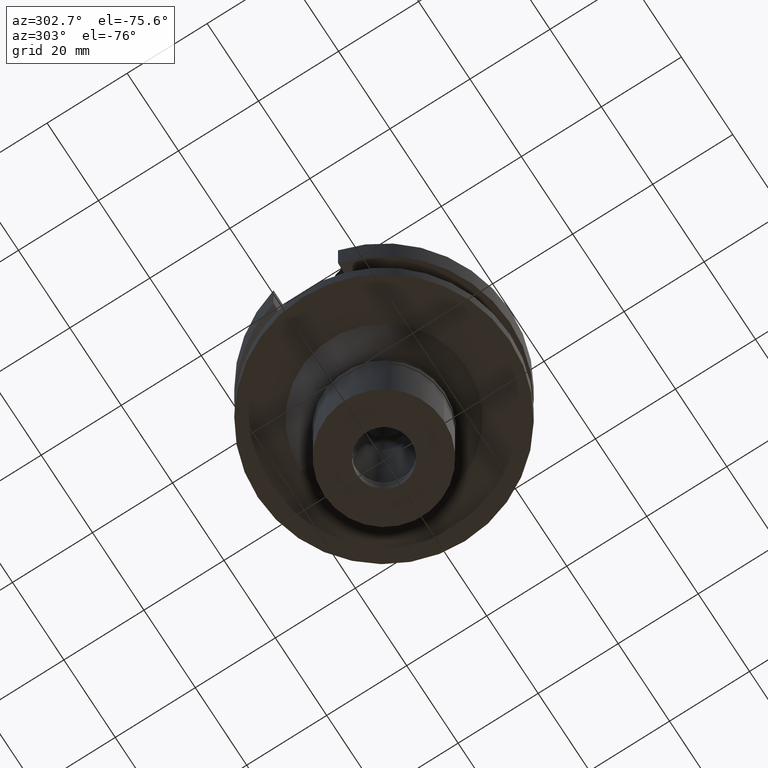
[diagram: clean part render]
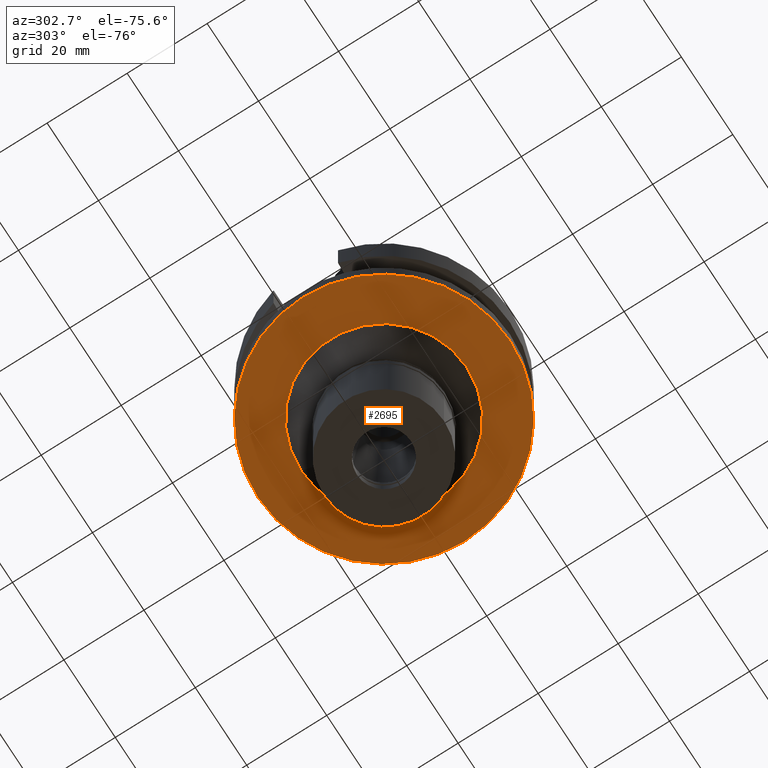
[diagram: same view with one face highlighted and labeled with its STEP entity id]
A machine part, auxiliary view. The second image highlights one B-rep face of the part: STEP entity #2695.
In plain terms, the highlighted planar face has unit normal (0, 0, -1).
Its self-contained STEP definition (entity closure, byte-faithful):
#249 = EDGE_CURVE ( 'NONE', #1019, #1689, #1490, .T. ) ;
#491 = AXIS2_PLACEMENT_3D ( 'NONE', #821, #1798, #2022 ) ;
#532 = CARTESIAN_POINT ( 'NONE',  ( 0.0000000000000000000, -31.50000000000000000, -27.00000000000000000 ) ) ;
#633 = CARTESIAN_POINT ( 'NONE',  ( 0.0000000000000000000, 0.0000000000000000000, -27.00000000000000000 ) ) ;
#645 = DIRECTION ( 'NONE',  ( 0.0000000000000000000, 0.0000000000000000000, -1.000000000000000000 ) ) ;
#670 = CARTESIAN_POINT ( 'NONE',  ( 0.0000000000000000000, 20.75000000000000000, -27.00000000000000000 ) ) ;
#757 = AXIS2_PLACEMENT_3D ( 'NONE', #1042, #2010, #863 ) ;
#788 = CIRCLE ( 'NONE', #1634, 31.50000000000000000 ) ;
#821 = CARTESIAN_POINT ( 'NONE',  ( 0.0000000000000000000, 0.0000000000000000000, -27.00000000000000000 ) ) ;
#824 = DIRECTION ( 'NONE',  ( 0.0000000000000000000, -1.000000000000000000, 0.0000000000000000000 ) ) ;
#863 = DIRECTION ( 'NONE',  ( 0.0000000000000000000, -1.000000000000000000, 0.0000000000000000000 ) ) ;
#1019 = VERTEX_POINT ( 'NONE', #532 ) ;
#1042 = CARTESIAN_POINT ( 'NONE',  ( 0.0000000000000000000, 0.0000000000000000000, -27.00000000000000000 ) ) ;
#1180 = VERTEX_POINT ( 'NONE', #670 ) ;
#1218 = DIRECTION ( 'NONE',  ( 0.0000000000000000000, 1.000000000000000000, 0.0000000000000000000 ) ) ;
#1350 = CARTESIAN_POINT ( 'NONE',  ( 0.0000000000000000000, 0.0000000000000000000, -27.00000000000000000 ) ) ;
#1370 = ORIENTED_EDGE ( 'NONE', *, *, #2499, .F. ) ;
#1465 = EDGE_LOOP ( 'NONE', ( #2450, #2188 ) ) ;
#1468 = VERTEX_POINT ( 'NONE', #2482 ) ;
#1487 = CARTESIAN_POINT ( 'NONE',  ( 0.0000000000000000000, 0.0000000000000000000, -27.00000000000000000 ) ) ;
#1490 = CIRCLE ( 'NONE', #757, 31.50000000000000000 ) ;
#1541 = DIRECTION ( 'NONE',  ( 0.0000000000000000000, 1.000000000000000000, 0.0000000000000000000 ) ) ;
#1580 = EDGE_CURVE ( 'NONE', #1468, #1180, #2846, .T. ) ;
#1634 = AXIS2_PLACEMENT_3D ( 'NONE', #1487, #2192, #1218 ) ;
#1689 = VERTEX_POINT ( 'NONE', #2699 ) ;
#1756 = DIRECTION ( 'NONE',  ( 0.0000000000000000000, 0.0000000000000000000, -1.000000000000000000 ) ) ;
#1798 = DIRECTION ( 'NONE',  ( 0.0000000000000000000, 0.0000000000000000000, -1.000000000000000000 ) ) ;
#1802 = FACE_OUTER_BOUND ( 'NONE', #2128, .T. ) ;
#1878 = CIRCLE ( 'NONE', #2356, 20.75000000000000000 ) ;
#2010 = DIRECTION ( 'NONE',  ( 0.0000000000000000000, 0.0000000000000000000, 1.000000000000000000 ) ) ;
#2022 = DIRECTION ( 'NONE',  ( 0.0000000000000000000, -1.000000000000000000, 0.0000000000000000000 ) ) ;
#2128 = EDGE_LOOP ( 'NONE', ( #1370, #2558 ) ) ;
#2188 = ORIENTED_EDGE ( 'NONE', *, *, #1580, .F. ) ;
#2192 = DIRECTION ( 'NONE',  ( 0.0000000000000000000, 0.0000000000000000000, 1.000000000000000000 ) ) ;
#2216 = EDGE_CURVE ( 'NONE', #1180, #1468, #1878, .T. ) ;
#2356 = AXIS2_PLACEMENT_3D ( 'NONE', #1350, #1756, #1541 ) ;
#2450 = ORIENTED_EDGE ( 'NONE', *, *, #2216, .F. ) ;
#2482 = CARTESIAN_POINT ( 'NONE',  ( 0.0000000000000000000, -20.75000000000000000, -27.00000000000000000 ) ) ;
#2499 = EDGE_CURVE ( 'NONE', #1689, #1019, #788, .T. ) ;
#2558 = ORIENTED_EDGE ( 'NONE', *, *, #249, .F. ) ;
#2695 = ADVANCED_FACE ( 'NONE', ( #1802, #2751 ), #2915, .T. ) ;
#2699 = CARTESIAN_POINT ( 'NONE',  ( 0.0000000000000000000, 31.50000000000000000, -27.00000000000000000 ) ) ;
#2751 = FACE_BOUND ( 'NONE', #1465, .T. ) ;
#2806 = AXIS2_PLACEMENT_3D ( 'NONE', #633, #645, #824 ) ;
#2846 = CIRCLE ( 'NONE', #491, 20.75000000000000000 ) ;
#2915 = PLANE ( 'NONE',  #2806 ) ;